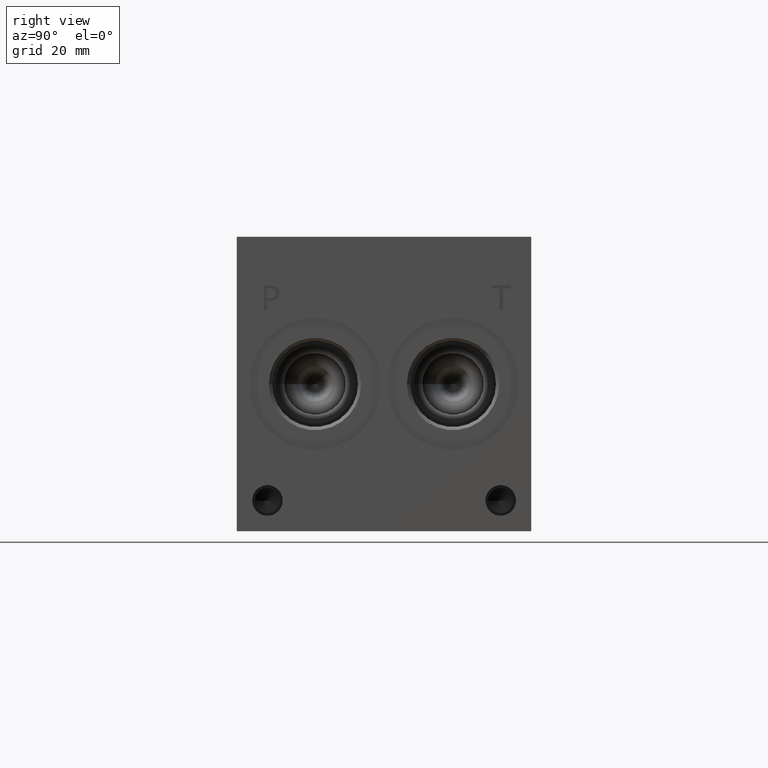
[diagram: clean part render]
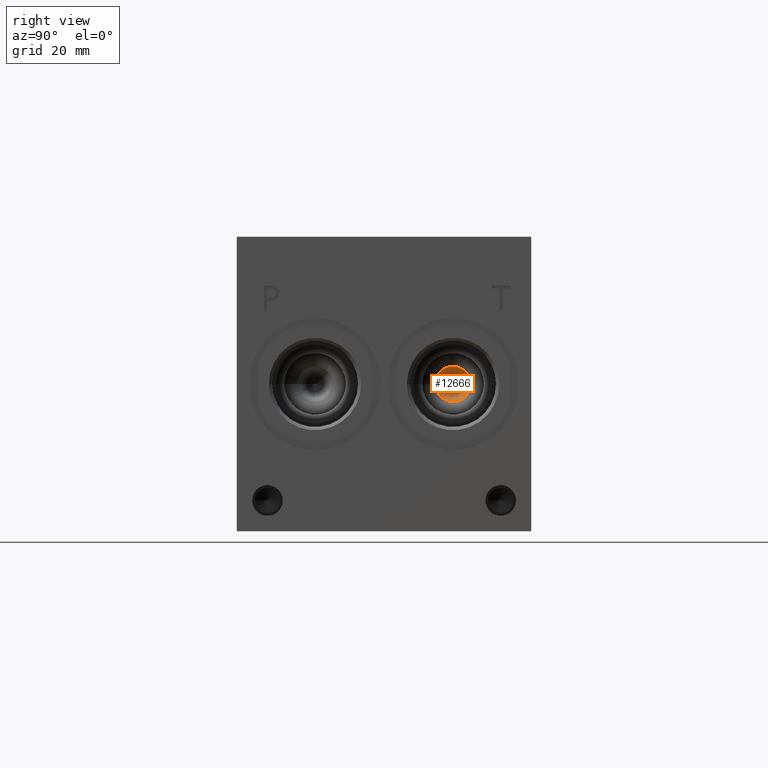
[diagram: same view with one face highlighted and labeled with its STEP entity id]
A machine part, right view. The second image highlights one B-rep face of the part: STEP entity #12666.
In plain terms, the highlighted conical surface has half-angle 15 deg.
Its self-contained STEP definition (entity closure, byte-faithful):
#146=CONICAL_SURFACE('',#13435,5.97535,0.261799387799149);
#385=CIRCLE('',#13389,4.57557592193413);
#1661=FACE_OUTER_BOUND('',#2400,.T.);
#2400=EDGE_LOOP('',(#11008,#11009,#11010));
#3574=LINE('',#21805,#4714);
#4714=VECTOR('',#16065,5.97535);
#5876=VERTEX_POINT('',#21713);
#5904=VERTEX_POINT('',#21804);
#7595=EDGE_CURVE('',#5876,#5876,#385,.T.);
#7639=EDGE_CURVE('',#5876,#5904,#3574,.T.);
#11008=ORIENTED_EDGE('',*,*,#7595,.T.);
#11009=ORIENTED_EDGE('',*,*,#7639,.T.);
#11010=ORIENTED_EDGE('',*,*,#7639,.F.);
#12666=ADVANCED_FACE('',(#1661),#146,.F.);
#13389=AXIS2_PLACEMENT_3D('',#21715,#15956,#15957);
#13435=AXIS2_PLACEMENT_3D('',#21803,#16063,#16064);
#15956=DIRECTION('center_axis',(1.,0.,0.));
#15957=DIRECTION('ref_axis',(0.,1.,0.));
#16063=DIRECTION('center_axis',(1.,0.,0.));
#16064=DIRECTION('ref_axis',(0.,1.,0.));
#16065=DIRECTION('',(-0.965925826289068,0.258819045102521,3.16961915143176E-17));
#21713=CARTESIAN_POINT('',(127.261482228534,51.3806240780659,38.1));
#21715=CARTESIAN_POINT('Origin',(127.261482228534,55.9562,38.1));
#21803=CARTESIAN_POINT('Origin',(132.485510206993,55.9562,38.1));
#21804=CARTESIAN_POINT('',(110.185200413987,55.9562,38.1));
#21805=CARTESIAN_POINT('',(132.485510206993,49.98085,38.1));